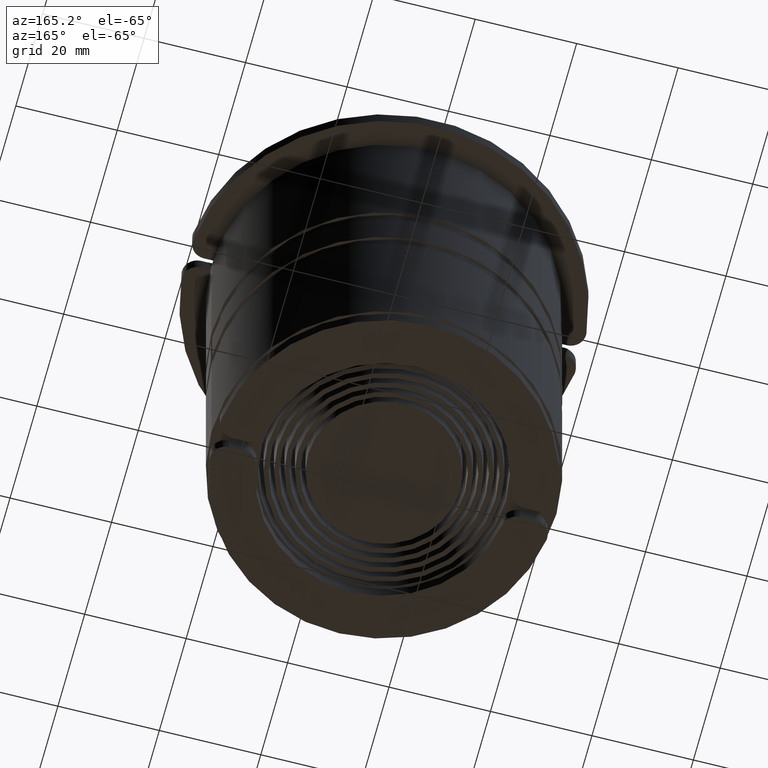
[diagram: clean part render]
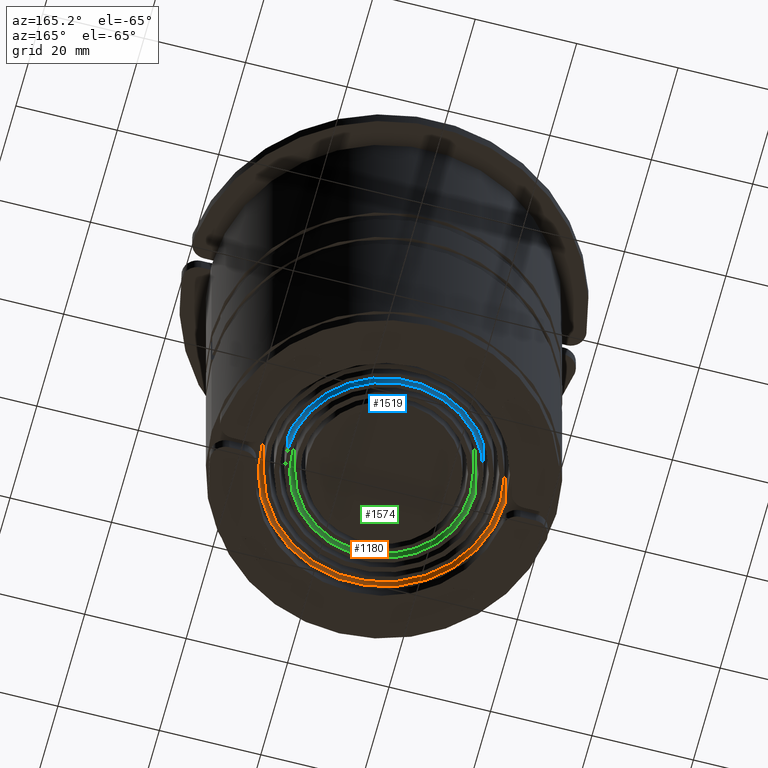
[diagram: same view with three faces highlighted in distinct colors, each labeled with its STEP entity id]
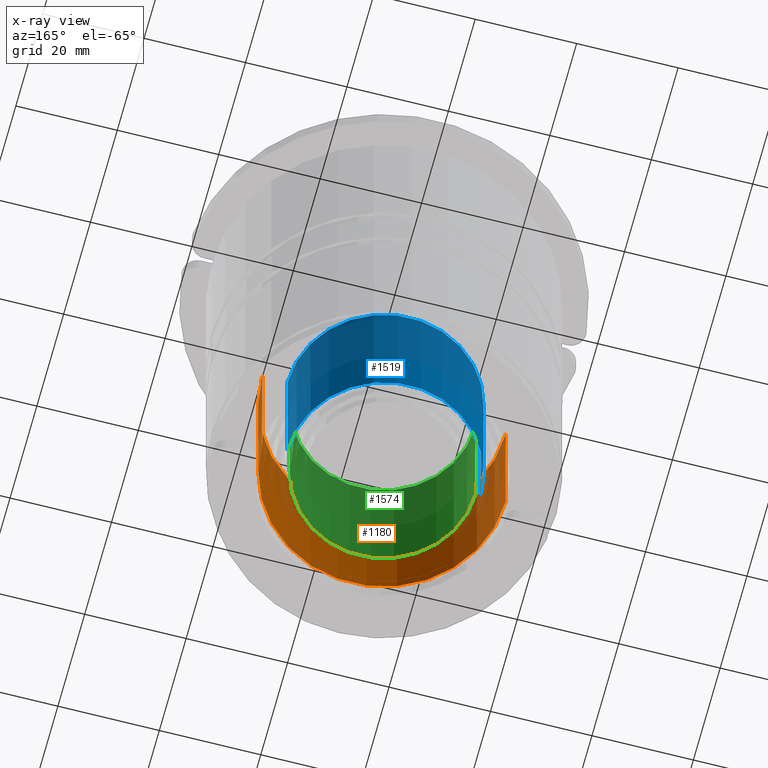
[diagram: x-ray of the same camera — body ghosted, the three highlighted faces saturated]
A machine part, auxiliary view with three faces highlighted in distinct colors.
The next image is the same camera in x-ray (body ghosted, the three faces saturated) — at least one of them is partly hidden behind the body in this view.
Their STEP definitions:

[orange] entity #1180 — the highlighted cylindrical surface (partial cylindrical patch) has radius 24 mm, axis along (0, 0, 1).
#1122=CARTESIAN_POINT('',(24.0,-16.999999999999886,-7.250000000000000));
#1123=VERTEX_POINT('',#1122);
#1130=CARTESIAN_POINT('',(24.0,-16.999999999999886,-37.750000000000000));
#1131=VERTEX_POINT('',#1130);
#1132=CARTESIAN_POINT('',(24.0,-16.999999999999886,-37.750000000000000));
#1133=DIRECTION('',(0.0,0.0,1.0));
#1134=VECTOR('',#1133,30.500000000000000);
#1135=LINE('',#1132,#1134);
#1136=EDGE_CURVE('',#1131,#1123,#1135,.T.);
#1148=CARTESIAN_POINT('',(0.0,-17.000000000000114,-37.750000000000000));
#1149=DIRECTION('',(0.0,0.0,1.0));
#1150=DIRECTION('',(1.0,0.0,0.0));
#1151=AXIS2_PLACEMENT_3D('',#1148,#1149,#1150);
#1152=CYLINDRICAL_SURFACE('',#1151,24.0);
#1153=CARTESIAN_POINT('',(-24.0,-17.000000000000114,-7.250000000000000));
#1154=VERTEX_POINT('',#1153);
#1155=CARTESIAN_POINT('',(0.0,-17.000000000000114,-7.250000000000000));
#1156=DIRECTION('',(0.0,0.0,1.0));
#1157=DIRECTION('',(1.0,0.0,0.0));
#1158=AXIS2_PLACEMENT_3D('',#1155,#1156,#1157);
#1159=CIRCLE('',#1158,24.0);
#1160=EDGE_CURVE('',#1123,#1154,#1159,.T.);
#1161=ORIENTED_EDGE('',*,*,#1160,.T.);
#1162=CARTESIAN_POINT('',(-24.0,-17.000000000000114,-37.750000000000000));
#1163=VERTEX_POINT('',#1162);
#1164=CARTESIAN_POINT('',(-24.0,-17.000000000000114,-37.750000000000000));
#1165=DIRECTION('',(0.0,0.0,1.0));
#1166=VECTOR('',#1165,30.500000000000000);
#1167=LINE('',#1164,#1166);
#1168=EDGE_CURVE('',#1163,#1154,#1167,.T.);
#1169=ORIENTED_EDGE('',*,*,#1168,.F.);
#1170=CARTESIAN_POINT('',(0.0,-17.000000000000114,-37.750000000000000));
#1171=DIRECTION('',(0.0,0.0,-1.0));
#1172=DIRECTION('',(1.0,0.0,0.0));
#1173=AXIS2_PLACEMENT_3D('',#1170,#1171,#1172);
#1174=CIRCLE('',#1173,24.0);
#1175=EDGE_CURVE('',#1163,#1131,#1174,.T.);
#1176=ORIENTED_EDGE('',*,*,#1175,.T.);
#1177=ORIENTED_EDGE('',*,*,#1136,.T.);
#1178=EDGE_LOOP('',(#1161,#1169,#1176,#1177));
#1179=FACE_OUTER_BOUND('',#1178,.F.);
#1180=ADVANCED_FACE('',(#1179),#1152,.T.);

[blue] entity #1519 — the highlighted cylindrical surface (partial cylindrical patch) has radius 19 mm, axis along (0, 0, 1).
#1454=CARTESIAN_POINT('',(-19.0,-17.000000000000114,-7.250000000000000));
#1455=VERTEX_POINT('',#1454);
#1462=CARTESIAN_POINT('',(-19.0,-17.000000000000114,-37.750000000000000));
#1463=VERTEX_POINT('',#1462);
#1464=CARTESIAN_POINT('',(-19.0,-17.000000000000114,-37.750000000000000));
#1465=DIRECTION('',(0.0,0.0,1.0));
#1466=VECTOR('',#1465,30.500000000000000);
#1467=LINE('',#1464,#1466);
#1468=EDGE_CURVE('',#1463,#1455,#1467,.T.);
#1487=CARTESIAN_POINT('',(0.0,-17.000000000000114,-37.750000000000000));
#1488=DIRECTION('',(0.0,0.0,1.0));
#1489=DIRECTION('',(1.0,0.0,0.0));
#1490=AXIS2_PLACEMENT_3D('',#1487,#1488,#1489);
#1491=CYLINDRICAL_SURFACE('',#1490,19.0);
#1492=CARTESIAN_POINT('',(19.0,-16.999999999999886,-7.250000000000000));
#1493=VERTEX_POINT('',#1492);
#1494=CARTESIAN_POINT('',(0.0,-17.000000000000114,-7.250000000000000));
#1495=DIRECTION('',(0.0,0.0,-1.0));
#1496=DIRECTION('',(1.0,0.0,0.0));
#1497=AXIS2_PLACEMENT_3D('',#1494,#1495,#1496);
#1498=CIRCLE('',#1497,19.0);
#1499=EDGE_CURVE('',#1455,#1493,#1498,.T.);
#1500=ORIENTED_EDGE('',*,*,#1499,.T.);
#1501=CARTESIAN_POINT('',(19.0,-16.999999999999886,-37.750000000000000));
#1502=VERTEX_POINT('',#1501);
#1503=CARTESIAN_POINT('',(19.0,-16.999999999999886,-37.750000000000000));
#1504=DIRECTION('',(0.0,0.0,1.0));
#1505=VECTOR('',#1504,30.500000000000000);
#1506=LINE('',#1503,#1505);
#1507=EDGE_CURVE('',#1502,#1493,#1506,.T.);
#1508=ORIENTED_EDGE('',*,*,#1507,.F.);
#1509=CARTESIAN_POINT('',(0.0,-17.000000000000114,-37.750000000000000));
#1510=DIRECTION('',(0.0,0.0,-1.0));
#1511=DIRECTION('',(1.0,0.0,0.0));
#1512=AXIS2_PLACEMENT_3D('',#1509,#1510,#1511);
#1513=CIRCLE('',#1512,19.0);
#1514=EDGE_CURVE('',#1463,#1502,#1513,.T.);
#1515=ORIENTED_EDGE('',*,*,#1514,.F.);
#1516=ORIENTED_EDGE('',*,*,#1468,.T.);
#1517=EDGE_LOOP('',(#1500,#1508,#1515,#1516));
#1518=FACE_OUTER_BOUND('',#1517,.F.);
#1519=ADVANCED_FACE('',(#1518),#1491,.F.);

[green] entity #1574 — the highlighted cylindrical surface (partial cylindrical patch) has radius 18 mm, axis along (0, 0, 1).
#1452=CARTESIAN_POINT('',(-18.0,-17.000000000000114,-7.250000000000000));
#1453=VERTEX_POINT('',#1452);
#1470=CARTESIAN_POINT('',(-18.0,-17.000000000000114,-37.750000000000000));
#1471=VERTEX_POINT('',#1470);
#1478=CARTESIAN_POINT('',(-18.0,-17.000000000000114,-37.750000000000000));
#1479=DIRECTION('',(0.0,0.0,1.0));
#1480=VECTOR('',#1479,30.500000000000000);
#1481=LINE('',#1478,#1480);
#1482=EDGE_CURVE('',#1471,#1453,#1481,.T.);
#1525=CARTESIAN_POINT('',(18.0,-16.999999999999886,-7.250000000000000));
#1526=VERTEX_POINT('',#1525);
#1533=CARTESIAN_POINT('',(18.0,-16.999999999999886,-37.750000000000000));
#1534=VERTEX_POINT('',#1533);
#1535=CARTESIAN_POINT('',(18.0,-16.999999999999886,-37.750000000000000));
#1536=DIRECTION('',(0.0,0.0,1.0));
#1537=VECTOR('',#1536,30.500000000000000);
#1538=LINE('',#1535,#1537);
#1539=EDGE_CURVE('',#1534,#1526,#1538,.T.);
#1551=CARTESIAN_POINT('',(0.0,-17.000000000000114,-37.750000000000000));
#1552=DIRECTION('',(0.0,0.0,1.0));
#1553=DIRECTION('',(1.0,0.0,0.0));
#1554=AXIS2_PLACEMENT_3D('',#1551,#1552,#1553);
#1555=CYLINDRICAL_SURFACE('',#1554,18.0);
#1556=CARTESIAN_POINT('',(0.0,-17.000000000000114,-7.250000000000000));
#1557=DIRECTION('',(0.0,0.0,1.0));
#1558=DIRECTION('',(1.0,0.0,0.0));
#1559=AXIS2_PLACEMENT_3D('',#1556,#1557,#1558);
#1560=CIRCLE('',#1559,18.0);
#1561=EDGE_CURVE('',#1526,#1453,#1560,.T.);
#1562=ORIENTED_EDGE('',*,*,#1561,.T.);
#1563=ORIENTED_EDGE('',*,*,#1482,.F.);
#1564=CARTESIAN_POINT('',(0.0,-17.000000000000114,-37.750000000000000));
#1565=DIRECTION('',(0.0,0.0,1.0));
#1566=DIRECTION('',(1.0,0.0,0.0));
#1567=AXIS2_PLACEMENT_3D('',#1564,#1565,#1566);
#1568=CIRCLE('',#1567,18.0);
#1569=EDGE_CURVE('',#1534,#1471,#1568,.T.);
#1570=ORIENTED_EDGE('',*,*,#1569,.F.);
#1571=ORIENTED_EDGE('',*,*,#1539,.T.);
#1572=EDGE_LOOP('',(#1562,#1563,#1570,#1571));
#1573=FACE_OUTER_BOUND('',#1572,.F.);
#1574=ADVANCED_FACE('',(#1573),#1555,.T.);